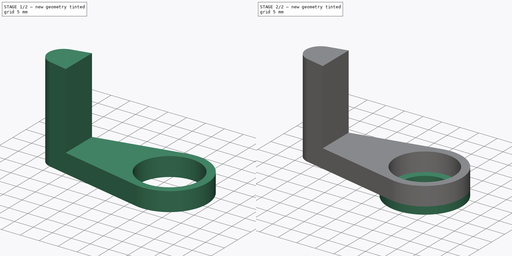
[diagram: build sequence overview — one tinted view per stage of 2, left to right]
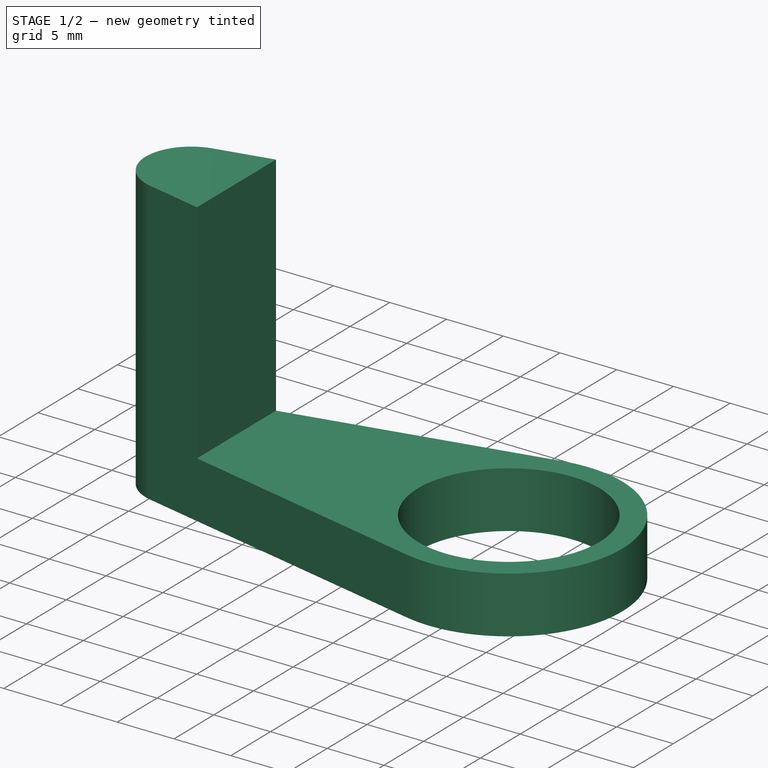
[diagram: stage 1 of 2 — iso view after this stage's code; geometry added in this stage tinted green]
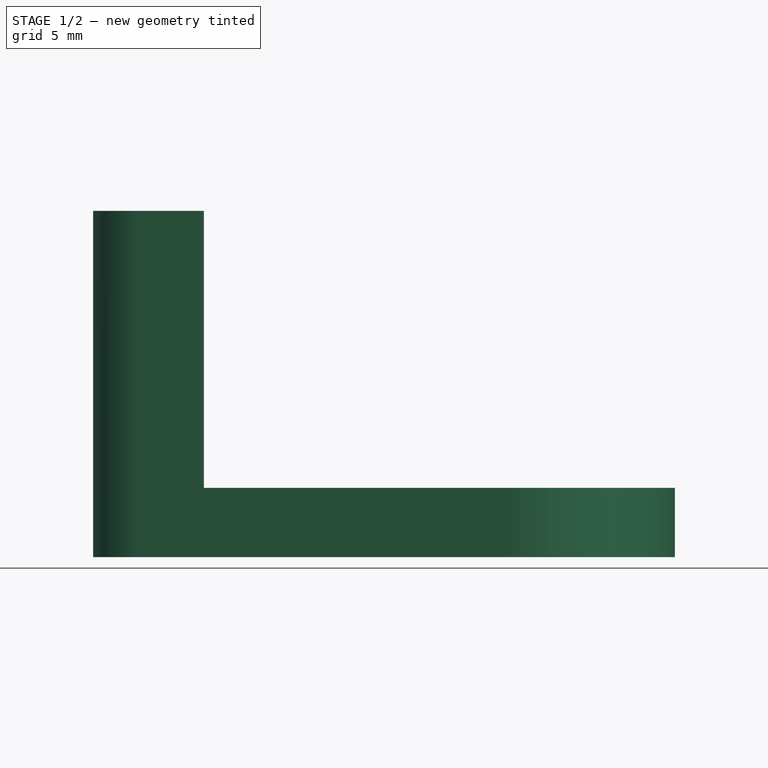
[diagram: stage 1 of 2 — front view after this stage's code; geometry added in this stage tinted green]
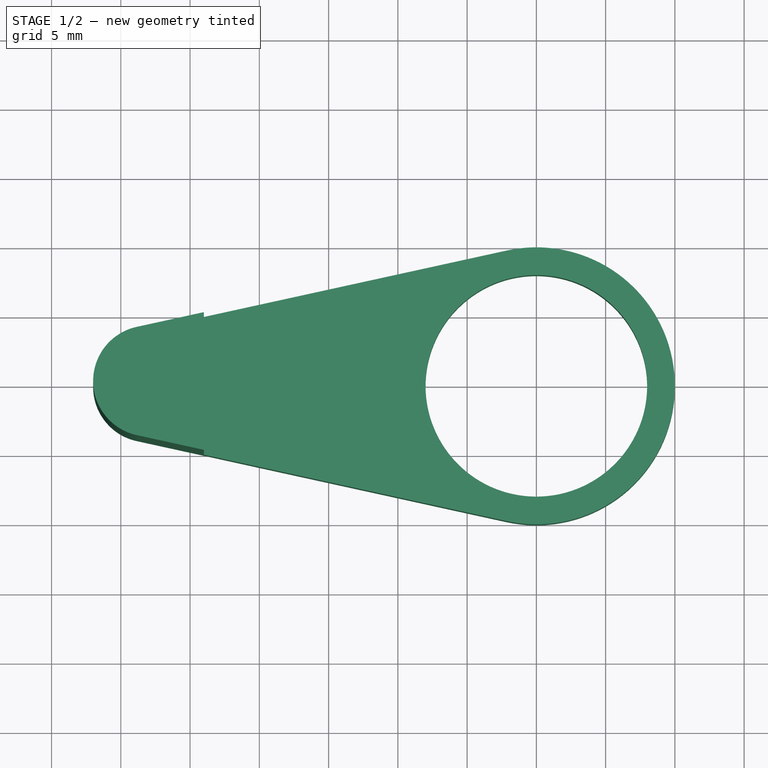
[diagram: stage 1 of 2 — top view after this stage's code; geometry added in this stage tinted green]
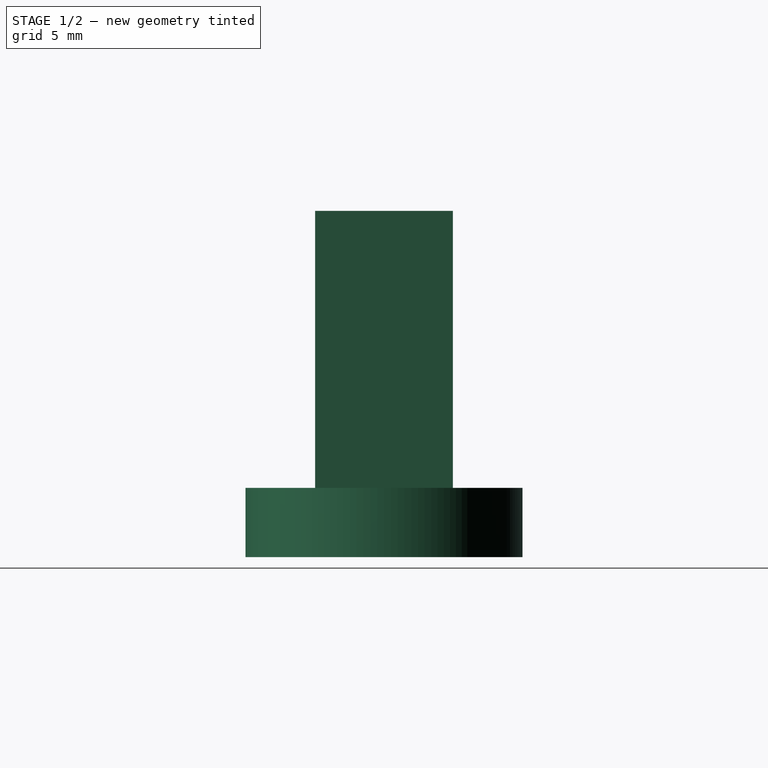
[diagram: stage 1 of 2 — right view after this stage's code; geometry added in this stage tinted green]
FCSTD DOCUMENT  (FreeCAD 0.19R24276 (Git))
Label: Knife_fork_part_1_v3_L28
License: All rights reserved
LicenseURL: http://en.wikipedia.org/wiki/All_rights_reserved
objects: Sketcher::SketchObject×3, PartDesign::Pad×3, PartDesign::Body×1
note: 10 computed .brp shape members not serialized (recipe doc carries the construction recipe); baked Part::Feature solids carry a one-line shape summary decoded from their .brp

FEATURE [Sketcher::SketchObject] Sketch
  FullyConstrained = true
  MapMode = 5
  Support = -> [XY_Plane]
  sketch-geometry (11):
    g0: Circle CenterX=0 CenterY=0 CenterZ=0 NormalX=0 NormalY=0 NormalZ=1 AngleXU=0 Radius=8
    g1: ArcOfCircle CenterX=0 CenterY=0 CenterZ=0 NormalX=0 NormalY=0 NormalZ=1 AngleXU=0 Radius=10 StartAngle=4.49643 EndAngle=8.06994
    g2: LineSegment StartX=0 StartY=0 StartZ=0 EndX=-28 EndY=0 EndZ=0
    g3: ArcOfCircle CenterX=-28 CenterY=0 CenterZ=0 NormalX=0 NormalY=0 NormalZ=1 AngleXU=0 Radius=4 StartAngle=1.78676 EndAngle=4.49643
    g4: LineSegment StartX=-28.8571 StartY=3.90708 StartZ=0 EndX=-2.14286 EndY=9.76771 EndZ=0
    g5: LineSegment StartX=-28.8571 StartY=3.90708 StartZ=0 EndX=-28 EndY=0 EndZ=0
    g6: LineSegment StartX=-2.14286 StartY=-9.76771 StartZ=0 EndX=-28.8571 EndY=-3.90708 EndZ=0
    g7: LineSegment StartX=0 StartY=0 StartZ=0 EndX=-2.14286 EndY=-9.76771 EndZ=0
    g8: LineSegment StartX=-28 StartY=0 StartZ=0 EndX=-28.8571 EndY=-3.90708 EndZ=0
    g9: LineSegment StartX=0 StartY=0 StartZ=0 EndX=-2.14286 EndY=9.76771 EndZ=0
    g10: Circle CenterX=-28 CenterY=0 CenterZ=0 NormalX=0 NormalY=0 NormalZ=1 AngleXU=0 Radius=4
  constraints (26):
    c: Coincident(g0,g-1)
    c: Diameter(g0) = 16
    c: Coincident(g1,g0)
    c: Diameter(g1) = 20
    c: Coincident(g2,g0)
    c: PointOnObject(g2,g-1)
    c: DistanceX(g2,g2) = 28
    c: Coincident(g3,g2)
    c: Diameter(g3) = 8
    c: Coincident(g5,g4)
    c: Coincident(g5,g2)
    c: Perpendicular(g5,g4)
    c: Coincident(g7,g0)
    c: Coincident(g7,g6)
    c: Perpendicular(g7,g6)
    c: Coincident(g8,g2)
    c: Coincident(g8,g6)
    c: Perpendicular(g6,g8)
    c: Coincident(g9,g0)
    c: Coincident(g9,g4)
    c: Coincident(g3,g4)
    c: Coincident(g3,g6)
    c: Tangent(g1,g4) = 1.5708
    c: Coincident(g1,g6)
    c: Coincident(g10,g3)
    c: Diameter(g10) = 8
FEATURE [PartDesign::Pad] Pad
  Direction = (1,1,1)
  Length = 5
  Length2 = 100
  Profile = -> Sketch
  Type = 0
FEATURE [Sketcher::SketchObject] Sketch001
  FullyConstrained = false
  MapMode = 5
  Placement = pos=(0,0,5) rot=(0,0,1;0rad)
  Support = -> [Pad]
  sketch-geometry (10):
    g0: LineSegment StartX=0 StartY=0 StartZ=0 EndX=-28 EndY=0 EndZ=0
    g1: ArcOfCircle CenterX=-28 CenterY=0 CenterZ=0 NormalX=0 NormalY=0 NormalZ=1 AngleXU=0 Radius=4 StartAngle=1.78676 EndAngle=4.49644
    g2: LineSegment StartX=-24 StartY=-4.97262 StartZ=0 EndX=-24 EndY=4.97265 EndZ=0
    g3: Circle CenterX=0 CenterY=0 CenterZ=0 NormalX=0 NormalY=0 NormalZ=1 AngleXU=0 Radius=10
    g4: LineSegment StartX=-24 StartY=4.97265 StartZ=0 EndX=-28.8571 EndY=3.90708 EndZ=0
    g5: LineSegment StartX=-24 StartY=-4.97262 StartZ=0 EndX=-28.8571 EndY=-3.90709 EndZ=0
    g6: LineSegment StartX=-2.14286 StartY=9.76771 StartZ=0 EndX=0 EndY=0 EndZ=0
    g7: LineSegment StartX=0 StartY=0 StartZ=0 EndX=-2.14279 EndY=-9.76772 EndZ=0
    g8: LineSegment StartX=-28.8571 StartY=3.90708 StartZ=0 EndX=-28 EndY=0 EndZ=0
    g9: LineSegment StartX=-28 StartY=0 StartZ=0 EndX=-28.8571 EndY=-3.90709 EndZ=0
  constraints (25):
    c: Coincident(g0,g-1)
    c: PointOnObject(g0,g-1)
    c: DistanceX(g0,g0) = 28
    c: Coincident(g1,g0)
    c: Diameter(g1) = 8
    c: Vertical(g2)
    c: Coincident(g3,g-1)
    c: Diameter(g3) = 20
    c: PointOnObject(g6,g3)
    c: PointOnObject(g7,g3)
    c: Coincident(g7,g-1)
    c: Coincident(g8,g4)
    c: Coincident(g8,g1)
    c: Coincident(g9,g1)
    c: Coincident(g9,g5)
    c: Perpendicular(g5,g7)
    c: Perpendicular(g6,g4)
    c: Perpendicular(g4,g8)
    c: Perpendicular(g5,g9)
    c: Coincident(g6,g-1)
    c: Coincident(g1,g5)
    c: Coincident(g1,g4)
    c: Coincident(g2,g5)
    c: Coincident(g2,g4)
    c: DistanceX(g1,g2) = 4
FEATURE [PartDesign::Pad] Pad001
  BaseFeature = -> Pad
  Direction = (1,1,1)
  Length = 20
  Length2 = 100
  Profile = -> Sketch001
  Type = 0
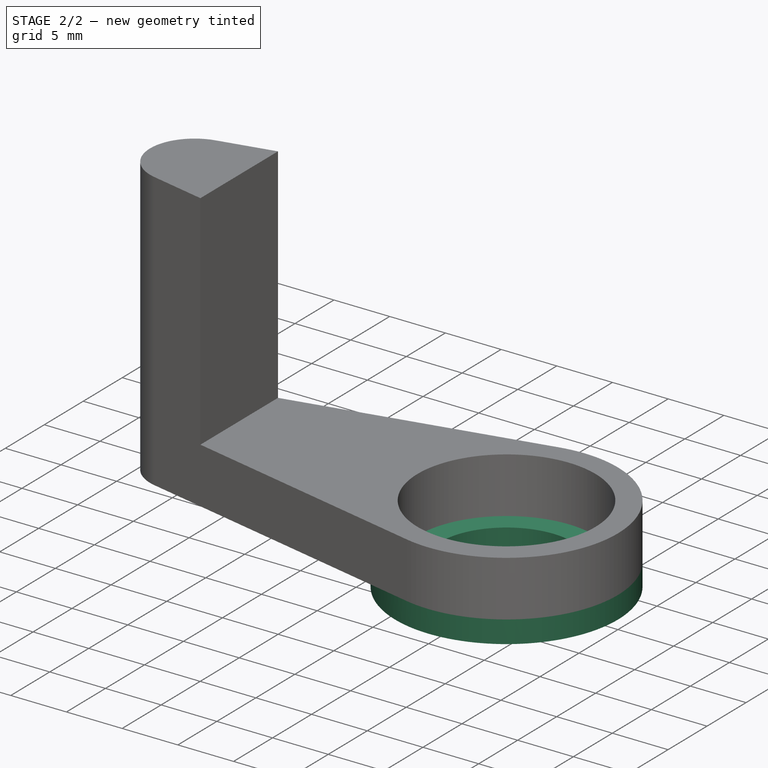
[diagram: stage 2 of 2 — iso view after this stage's code; geometry added in this stage tinted green]
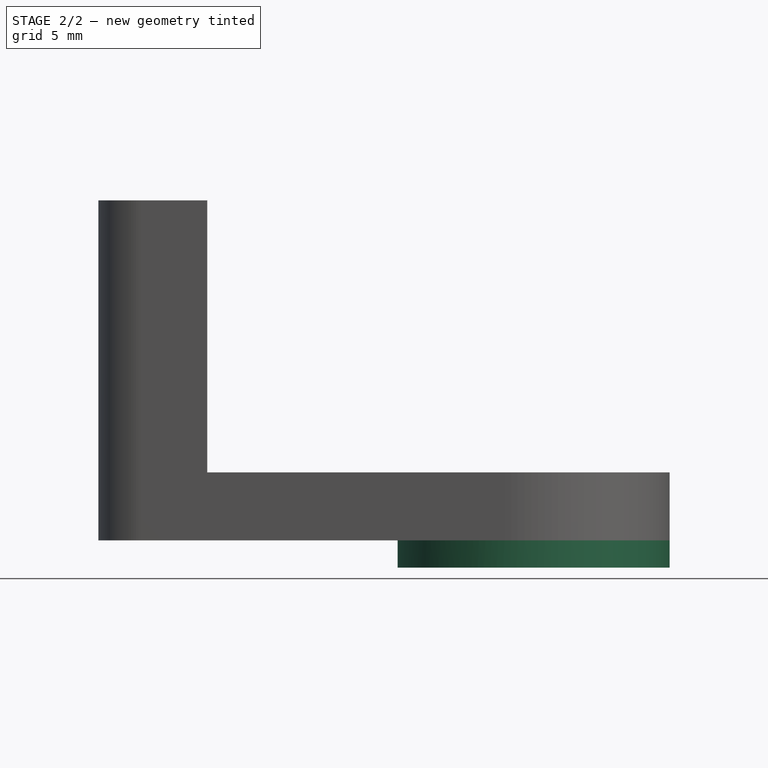
[diagram: stage 2 of 2 — front view after this stage's code; geometry added in this stage tinted green]
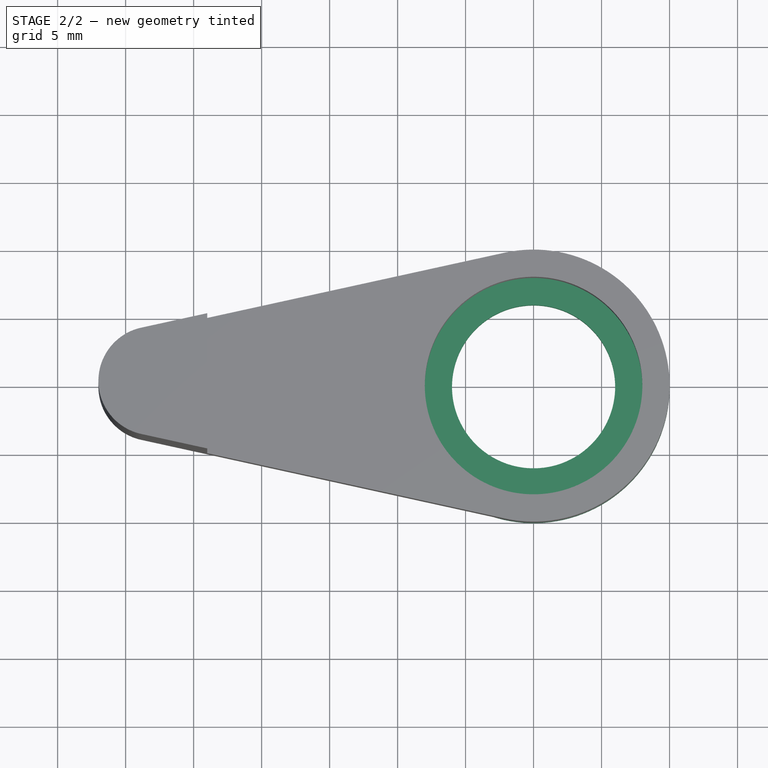
[diagram: stage 2 of 2 — top view after this stage's code; geometry added in this stage tinted green]
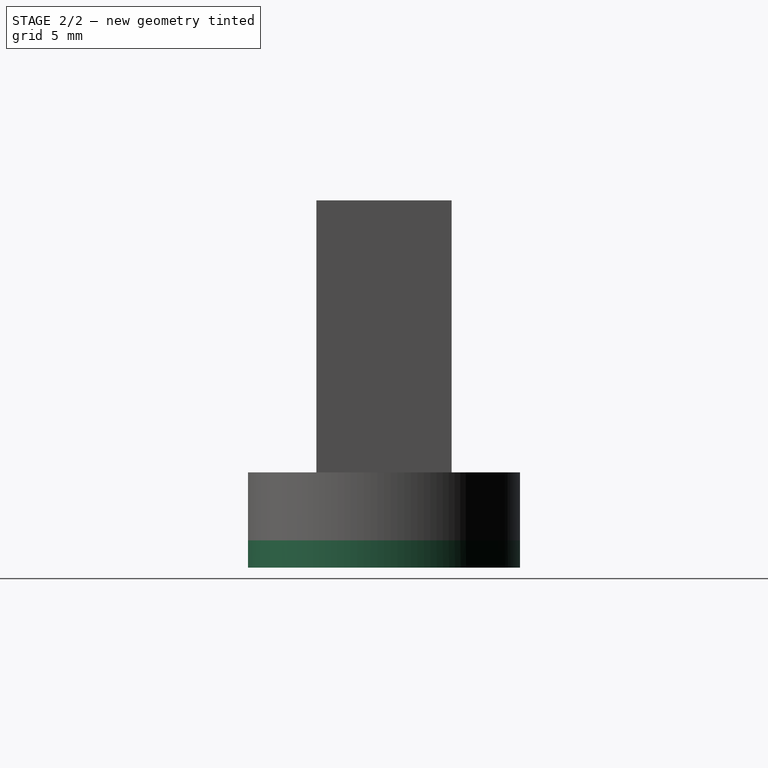
[diagram: stage 2 of 2 — right view after this stage's code; geometry added in this stage tinted green]
FEATURE [Sketcher::SketchObject] Sketch002
  FullyConstrained = true
  MapMode = 5
  Placement = pos=(0,0,0) rot=(1,0,0;3.14159rad)
  sketch-geometry (2):
    g0: Circle CenterX=0 CenterY=0 CenterZ=0 NormalX=0 NormalY=0 NormalZ=1 AngleXU=0 Radius=10
    g1: Circle CenterX=0 CenterY=0 CenterZ=0 NormalX=0 NormalY=0 NormalZ=1 AngleXU=0 Radius=6
  constraints (4):
    c: Coincident(g0,g-1)
    c: Coincident(g1,g0)
    c: Diameter(g0) = 20
    c: Diameter(g1) = 12
FEATURE [PartDesign::Pad] Pad002
  BaseFeature = -> Pad001
  Direction = (1,1,1)
  Length = 2
  Length2 = 100
  Profile = -> Sketch002
  Type = 0
FEATURE [PartDesign::Body] Body
  Group = -> [Sketch,Pad,Sketch001,Pad001,Sketch002,Pad002]
  Origin = -> Origin
  Tip = -> Pad002
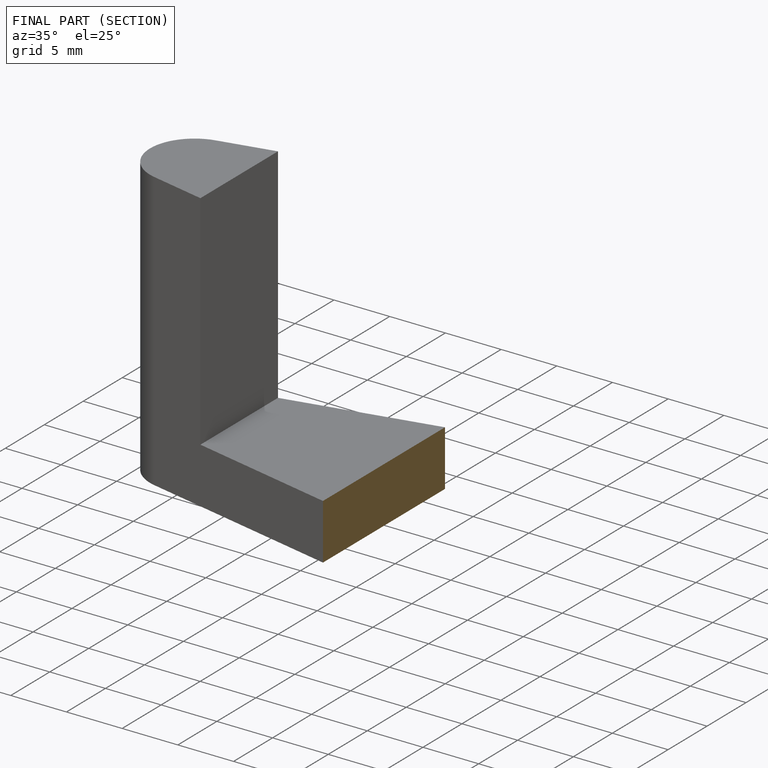
[diagram: finished part — half-section view (interior)]
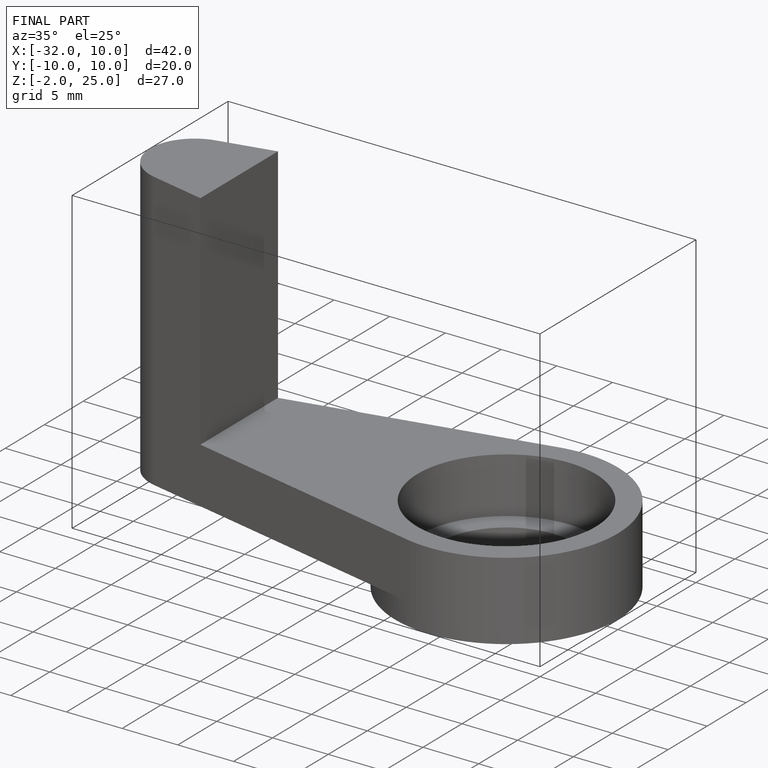
[diagram: finished part — iso view with bounding-box wireframe]
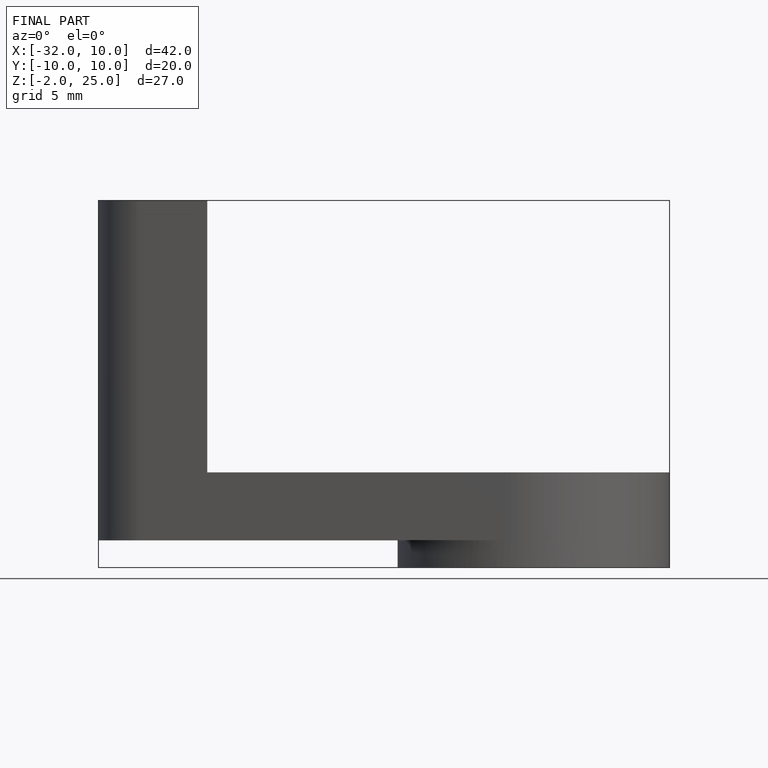
[diagram: finished part — front view with bounding-box wireframe]
